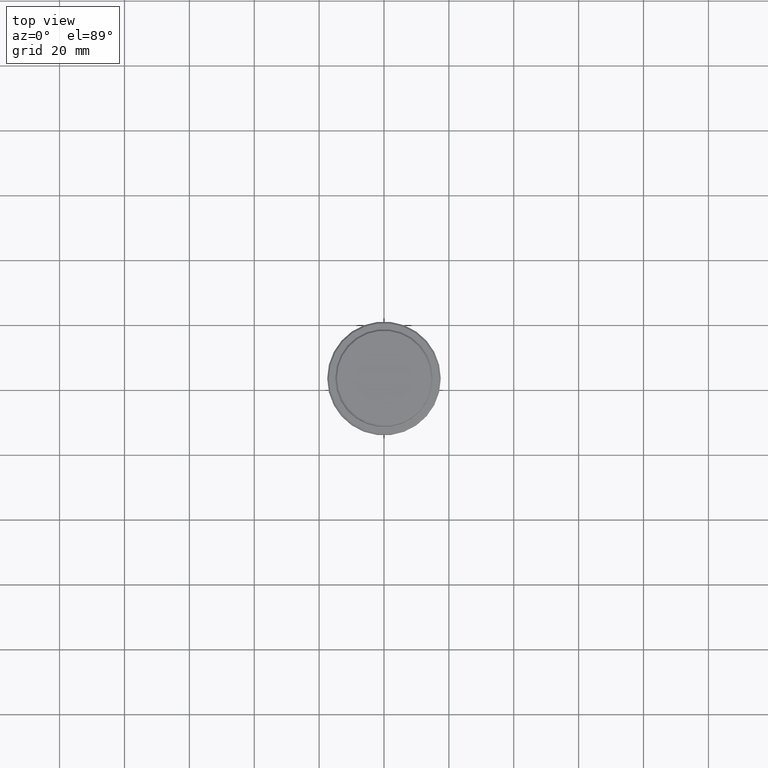
[diagram: clean part render]
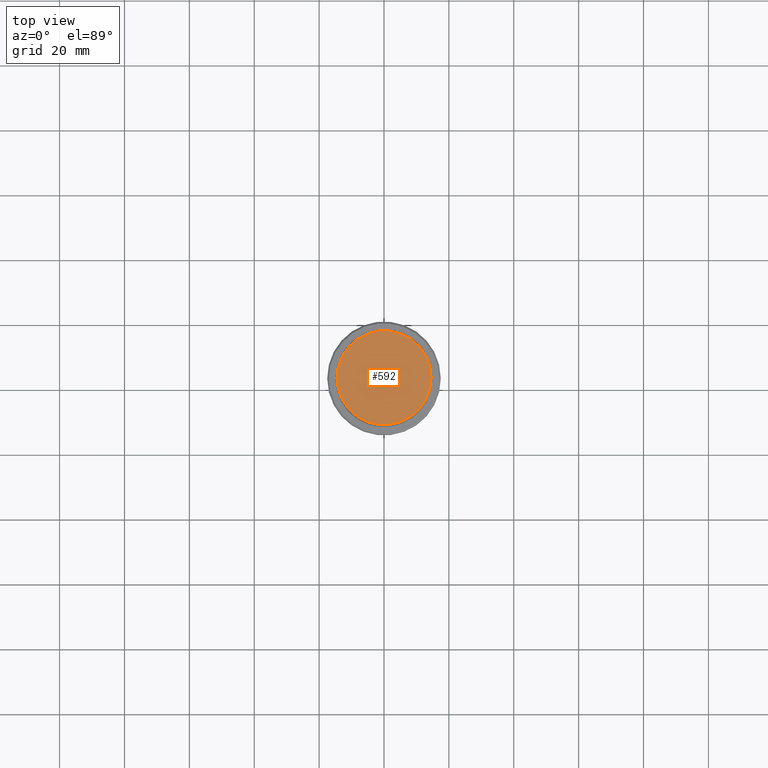
[diagram: same view with one face highlighted and labeled with its STEP entity id]
A machine part, top view. The second image highlights one B-rep face of the part: STEP entity #592.
In plain terms, the highlighted planar face has unit normal (0, -0, 1).
Its self-contained STEP definition (entity closure, byte-faithful):
#5 = VERTEX_POINT ( 'NONE', #664 ) ;
#190 = DIRECTION ( 'NONE',  ( -0.000000000000000000, -0.000000000000000000, 1.000000000000000000 ) ) ;
#295 = PLANE ( 'NONE',  #1384 ) ;
#301 = DIRECTION ( 'NONE',  ( 1.000000000000000000, 0.000000000000000000, 0.000000000000000000 ) ) ;
#303 = DIRECTION ( 'NONE',  ( 1.000000000000000000, 0.000000000000000000, 0.000000000000000000 ) ) ;
#419 = DIRECTION ( 'NONE',  ( 0.000000000000000000, -0.000000000000000000, 1.000000000000000000 ) ) ;
#423 = EDGE_CURVE ( 'NONE', #671, #5, #623, .T. ) ;
#503 = CARTESIAN_POINT ( 'NONE',  ( 0.000000000000000000, 0.000000000000000000, 0.000000000000000000 ) ) ;
#532 = AXIS2_PLACEMENT_3D ( 'NONE', #753, #190, #887 ) ;
#533 = FACE_OUTER_BOUND ( 'NONE', #1196, .T. ) ;
#573 = AXIS2_PLACEMENT_3D ( 'NONE', #503, #1152, #301 ) ;
#592 = ADVANCED_FACE ( 'NONE', ( #533 ), #295, .T. ) ;
#623 = CIRCLE ( 'NONE', #532, 14.49999999999998401 ) ;
#629 = CARTESIAN_POINT ( 'NONE',  ( 0.000000000000000000, 0.000000000000000000, 0.000000000000000000 ) ) ;
#632 = EDGE_CURVE ( 'NONE', #5, #671, #1032, .T. ) ;
#664 = CARTESIAN_POINT ( 'NONE',  ( -14.49999999999998401, 0.000000000000000000, 0.000000000000000000 ) ) ;
#671 = VERTEX_POINT ( 'NONE', #1173 ) ;
#753 = CARTESIAN_POINT ( 'NONE',  ( 0.000000000000000000, 0.000000000000000000, 0.000000000000000000 ) ) ;
#833 = ORIENTED_EDGE ( 'NONE', *, *, #423, .T. ) ;
#887 = DIRECTION ( 'NONE',  ( 1.000000000000000000, 0.000000000000000000, 0.000000000000000000 ) ) ;
#910 = ORIENTED_EDGE ( 'NONE', *, *, #632, .T. ) ;
#1032 = CIRCLE ( 'NONE', #573, 14.49999999999998401 ) ;
#1152 = DIRECTION ( 'NONE',  ( -0.000000000000000000, -0.000000000000000000, 1.000000000000000000 ) ) ;
#1173 = CARTESIAN_POINT ( 'NONE',  ( 14.49999999999998401, 1.806354028742345013E-15, 0.000000000000000000 ) ) ;
#1196 = EDGE_LOOP ( 'NONE', ( #910, #833 ) ) ;
#1384 = AXIS2_PLACEMENT_3D ( 'NONE', #629, #419, #303 ) ;